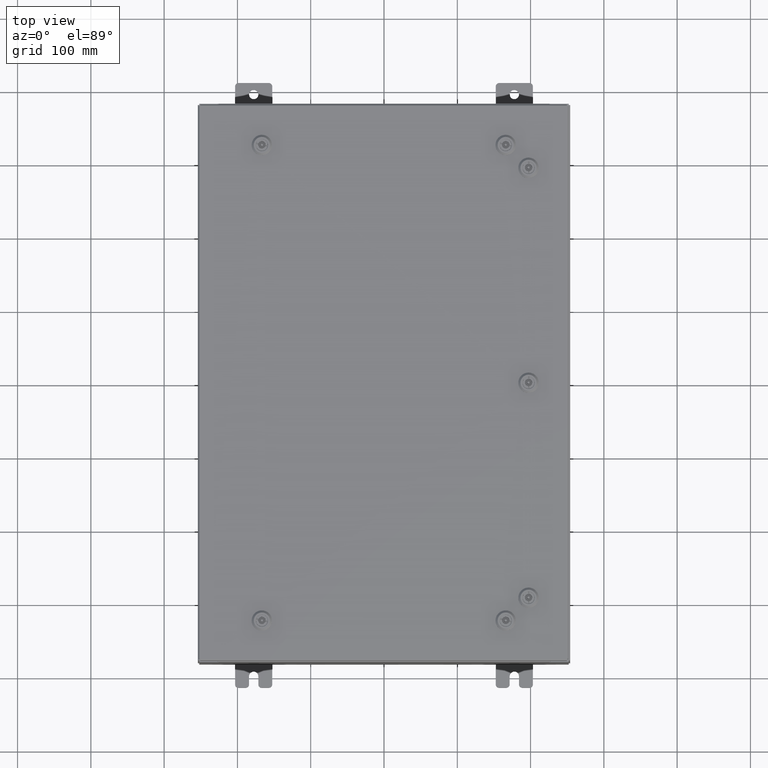
[diagram: clean part render]
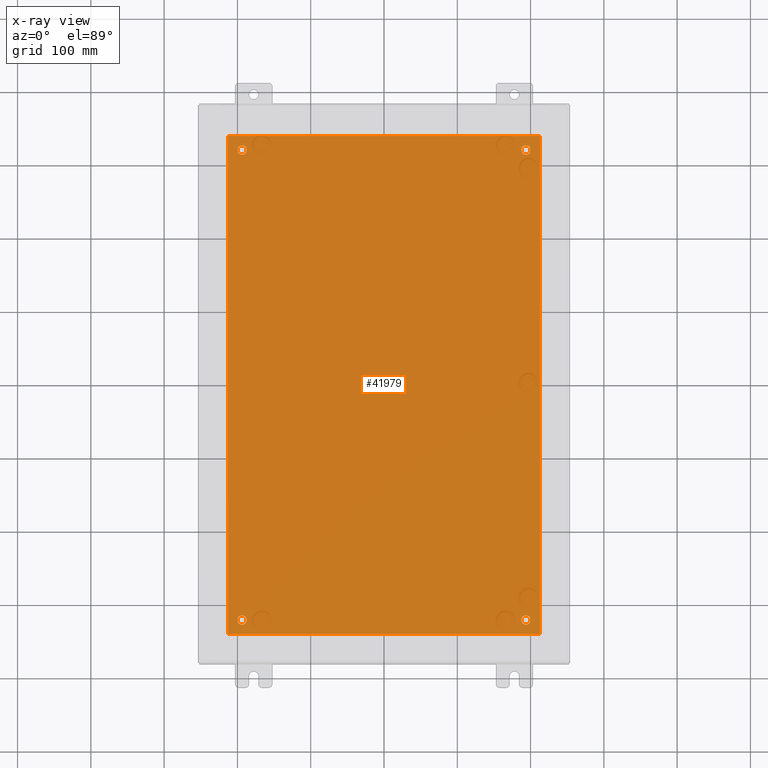
[diagram: x-ray — body ghosted, one internal face saturated and labeled with its STEP entity id]
A machine part, top view, then the same camera in x-ray: the body is ghosted and one INTERNAL B-rep face — a face not visible from any outside direction — is saturated and labeled: STEP entity #41979.
In plain terms, the highlighted planar face has unit normal (0, 0, -1).
Its self-contained STEP definition (entity closure, byte-faithful):
#761 = VECTOR ( 'NONE', #25860, 39.37007874015748100 ) ;
#937 = ORIENTED_EDGE ( 'NONE', *, *, #12222, .T. ) ;
#2925 = LINE ( 'NONE', #32680, #17628 ) ;
#4350 = CARTESIAN_POINT ( 'NONE',  ( -7.625000000000002700, -12.62500000000000200, -0.1039999999999999800 ) ) ;
#5690 = EDGE_CURVE ( 'NONE', #38371, #30769, #10854, .T. ) ;
#6161 = CARTESIAN_POINT ( 'NONE',  ( -8.383000000000000900, 13.38300000000000100, -0.1039999999999998300 ) ) ;
#6481 = DIRECTION ( 'NONE',  ( -0.0000000000000000000, -0.0000000000000000000, 1.000000000000000000 ) ) ;
#7189 = CARTESIAN_POINT ( 'NONE',  ( -7.375000000000003600, 12.62500000000000200, -0.1039999999999999800 ) ) ;
#7262 = VECTOR ( 'NONE', #22484, 39.37007874015748100 ) ;
#7349 = EDGE_LOOP ( 'NONE', ( #53517, #49476, #31293, #58685 ) ) ;
#8088 = VERTEX_POINT ( 'NONE', #51611 ) ;
#8525 = AXIS2_PLACEMENT_3D ( 'NONE', #43773, #14101, #48751 ) ;
#8856 = VERTEX_POINT ( 'NONE', #61329 ) ;
#9336 = DIRECTION ( 'NONE',  ( -1.000000000000000000, 0.0000000000000000000, 0.0000000000000000000 ) ) ;
#10854 = CIRCLE ( 'NONE', #46189, 0.2499999999999987000 ) ;
#11280 = AXIS2_PLACEMENT_3D ( 'NONE', #48562, #18892, #53551 ) ;
#12222 = EDGE_CURVE ( 'NONE', #56768, #8856, #21753, .T. ) ;
#12714 = CARTESIAN_POINT ( 'NONE',  ( -7.625000000000002700, 12.62500000000000200, -0.1039999999999999800 ) ) ;
#13199 = FACE_BOUND ( 'NONE', #40708, .T. ) ;
#13901 = AXIS2_PLACEMENT_3D ( 'NONE', #36153, #6481, #41131 ) ;
#14101 = DIRECTION ( 'NONE',  ( -0.0000000000000000000, -0.0000000000000000000, 1.000000000000000000 ) ) ;
#14767 = DIRECTION ( 'NONE',  ( -1.000000000000000000, -0.0000000000000000000, -0.0000000000000000000 ) ) ;
#14958 = AXIS2_PLACEMENT_3D ( 'NONE', #4350, #39041, #9336 ) ;
#15129 = VECTOR ( 'NONE', #14767, 39.37007874015748100 ) ;
#15661 = CARTESIAN_POINT ( 'NONE',  ( -8.383000000000000900, -13.38299999999999400, -0.1040000000000009100 ) ) ;
#17360 = CIRCLE ( 'NONE', #14958, 0.2499999999999998100 ) ;
#17628 = VECTOR ( 'NONE', #62385, 39.37007874015748100 ) ;
#17673 = DIRECTION ( 'NONE',  ( -1.000000000000000000, 0.0000000000000000000, 0.0000000000000000000 ) ) ;
#17687 = CIRCLE ( 'NONE', #13901, 0.2499999999999987000 ) ;
#18577 = CARTESIAN_POINT ( 'NONE',  ( 8.383000000000002700, 13.38300000000000100, -0.1039999999999992700 ) ) ;
#18892 = DIRECTION ( 'NONE',  ( -0.0000000000000000000, -0.0000000000000000000, 1.000000000000000000 ) ) ;
#19087 = AXIS2_PLACEMENT_3D ( 'NONE', #54759, #25097, #59777 ) ;
#19708 = VERTEX_POINT ( 'NONE', #7189 ) ;
#20385 = DIRECTION ( 'NONE',  ( -0.0000000000000000000, -0.0000000000000000000, 1.000000000000000000 ) ) ;
#20744 = VERTEX_POINT ( 'NONE', #18577 ) ;
#21753 = CIRCLE ( 'NONE', #8525, 0.2499999999999998100 ) ;
#22484 = DIRECTION ( 'NONE',  ( 1.000000000000000000, -0.0000000000000000000, -0.0000000000000000000 ) ) ;
#25097 = DIRECTION ( 'NONE',  ( -0.0000000000000000000, -0.0000000000000000000, 1.000000000000000000 ) ) ;
#25696 = EDGE_CURVE ( 'NONE', #8088, #48552, #17687, .T. ) ;
#25860 = DIRECTION ( 'NONE',  ( 0.0000000000000000000, -1.000000000000000000, 0.0000000000000000000 ) ) ;
#25900 = AXIS2_PLACEMENT_3D ( 'NONE', #12714, #47364, #17673 ) ;
#25968 = CARTESIAN_POINT ( 'NONE',  ( 0.0000000000000000000, 0.0000000000000000000, -0.1039999999999999800 ) ) ;
#27299 = EDGE_CURVE ( 'NONE', #52438, #19708, #30041, .T. ) ;
#28296 = EDGE_CURVE ( 'NONE', #63691, #20744, #2925, .T. ) ;
#28405 = DIRECTION ( 'NONE',  ( -0.0000000000000000000, -0.0000000000000000000, 1.000000000000000000 ) ) ;
#28819 = VERTEX_POINT ( 'NONE', #42804 ) ;
#29589 = CARTESIAN_POINT ( 'NONE',  ( 7.875000000000001800, 12.62500000000000200, -0.1039999999999999800 ) ) ;
#29623 = ORIENTED_EDGE ( 'NONE', *, *, #49201, .T. ) ;
#30041 = CIRCLE ( 'NONE', #25900, 0.2499999999999998100 ) ;
#30769 = VERTEX_POINT ( 'NONE', #53910 ) ;
#30959 = DIRECTION ( 'NONE',  ( -1.000000000000000000, 0.0000000000000000000, -0.0000000000000000000 ) ) ;
#31293 = ORIENTED_EDGE ( 'NONE', *, *, #31572, .F. ) ;
#31572 = EDGE_CURVE ( 'NONE', #20744, #28819, #41483, .T. ) ;
#32680 = CARTESIAN_POINT ( 'NONE',  ( 8.383000000000002700, -13.38299999999999200, -0.1039999999999992700 ) ) ;
#33607 = LINE ( 'NONE', #47182, #7262 ) ;
#34453 = CIRCLE ( 'NONE', #61493, 0.2499999999999987000 ) ;
#35844 = CARTESIAN_POINT ( 'NONE',  ( 7.875000000000001800, -12.62500000000000200, -0.1039999999999999800 ) ) ;
#36153 = CARTESIAN_POINT ( 'NONE',  ( 7.625000000000002700, 12.62500000000000200, -0.1039999999999999800 ) ) ;
#36357 = AXIS2_PLACEMENT_3D ( 'NONE', #25968, #60669, #30959 ) ;
#36495 = FACE_OUTER_BOUND ( 'NONE', #7349, .T. ) ;
#37361 = EDGE_CURVE ( 'NONE', #8856, #56768, #17360, .T. ) ;
#37635 = EDGE_CURVE ( 'NONE', #30769, #38371, #34453, .T. ) ;
#38021 = EDGE_CURVE ( 'NONE', #49500, #63691, #33607, .T. ) ;
#38371 = VERTEX_POINT ( 'NONE', #35844 ) ;
#39041 = DIRECTION ( 'NONE',  ( -0.0000000000000000000, -0.0000000000000000000, 1.000000000000000000 ) ) ;
#39604 = FACE_BOUND ( 'NONE', #60157, .T. ) ;
#40708 = EDGE_LOOP ( 'NONE', ( #51231, #61926 ) ) ;
#40721 = PLANE ( 'NONE',  #36357 ) ;
#41131 = DIRECTION ( 'NONE',  ( -1.000000000000000000, 0.0000000000000000000, 0.0000000000000000000 ) ) ;
#41483 = LINE ( 'NONE', #49416, #15129 ) ;
#41979 = ADVANCED_FACE ( 'NONE', ( #62844, #13199, #39604, #49645, #36495 ), #40721, .T. ) ;
#42283 = CARTESIAN_POINT ( 'NONE',  ( 8.383000000000002700, -13.38299999999999200, -0.1039999999999992700 ) ) ;
#42804 = CARTESIAN_POINT ( 'NONE',  ( -8.383000000000000900, 13.38300000000000100, -0.1039999999999998300 ) ) ;
#43281 = ORIENTED_EDGE ( 'NONE', *, *, #62411, .T. ) ;
#43773 = CARTESIAN_POINT ( 'NONE',  ( -7.625000000000002700, -12.62500000000000200, -0.1039999999999999800 ) ) ;
#44751 = EDGE_CURVE ( 'NONE', #28819, #49500, #53423, .T. ) ;
#46189 = AXIS2_PLACEMENT_3D ( 'NONE', #58088, #28405, #63108 ) ;
#46976 = CARTESIAN_POINT ( 'NONE',  ( -7.875000000000002700, 12.62500000000000200, -0.1039999999999999800 ) ) ;
#47182 = CARTESIAN_POINT ( 'NONE',  ( -8.500000000000000000, -13.38299999999999400, -0.1040000000000009100 ) ) ;
#47364 = DIRECTION ( 'NONE',  ( -0.0000000000000000000, -0.0000000000000000000, 1.000000000000000000 ) ) ;
#48552 = VERTEX_POINT ( 'NONE', #29589 ) ;
#48562 = CARTESIAN_POINT ( 'NONE',  ( -7.625000000000002700, 12.62500000000000200, -0.1039999999999999800 ) ) ;
#48751 = DIRECTION ( 'NONE',  ( -1.000000000000000000, 0.0000000000000000000, 0.0000000000000000000 ) ) ;
#49201 = EDGE_CURVE ( 'NONE', #19708, #52438, #55523, .T. ) ;
#49416 = CARTESIAN_POINT ( 'NONE',  ( 8.500000000000001800, 13.38300000000000300, -0.1040000000000009100 ) ) ;
#49476 = ORIENTED_EDGE ( 'NONE', *, *, #44751, .F. ) ;
#49500 = VERTEX_POINT ( 'NONE', #15661 ) ;
#49645 = FACE_BOUND ( 'NONE', #62691, .T. ) ;
#50056 = CARTESIAN_POINT ( 'NONE',  ( 7.625000000000002700, -12.62500000000000200, -0.1039999999999999800 ) ) ;
#50267 = ORIENTED_EDGE ( 'NONE', *, *, #27299, .T. ) ;
#51231 = ORIENTED_EDGE ( 'NONE', *, *, #5690, .T. ) ;
#51611 = CARTESIAN_POINT ( 'NONE',  ( 7.375000000000004400, 12.62500000000000200, -0.1039999999999999800 ) ) ;
#52438 = VERTEX_POINT ( 'NONE', #46976 ) ;
#53423 = LINE ( 'NONE', #6161, #761 ) ;
#53517 = ORIENTED_EDGE ( 'NONE', *, *, #38021, .F. ) ;
#53551 = DIRECTION ( 'NONE',  ( -1.000000000000000000, 0.0000000000000000000, 0.0000000000000000000 ) ) ;
#53910 = CARTESIAN_POINT ( 'NONE',  ( 7.375000000000004400, -12.62500000000000200, -0.1039999999999999800 ) ) ;
#54759 = CARTESIAN_POINT ( 'NONE',  ( 7.625000000000002700, 12.62500000000000200, -0.1039999999999999800 ) ) ;
#55035 = DIRECTION ( 'NONE',  ( -1.000000000000000000, 0.0000000000000000000, 0.0000000000000000000 ) ) ;
#55498 = ORIENTED_EDGE ( 'NONE', *, *, #25696, .T. ) ;
#55523 = CIRCLE ( 'NONE', #11280, 0.2499999999999998100 ) ;
#56768 = VERTEX_POINT ( 'NONE', #62484 ) ;
#56917 = CIRCLE ( 'NONE', #19087, 0.2499999999999987000 ) ;
#58088 = CARTESIAN_POINT ( 'NONE',  ( 7.625000000000002700, -12.62500000000000200, -0.1039999999999999800 ) ) ;
#58685 = ORIENTED_EDGE ( 'NONE', *, *, #28296, .F. ) ;
#59777 = DIRECTION ( 'NONE',  ( -1.000000000000000000, 0.0000000000000000000, 0.0000000000000000000 ) ) ;
#60157 = EDGE_LOOP ( 'NONE', ( #43281, #55498 ) ) ;
#60669 = DIRECTION ( 'NONE',  ( 0.0000000000000000000, 0.0000000000000000000, -1.000000000000000000 ) ) ;
#61329 = CARTESIAN_POINT ( 'NONE',  ( -7.875000000000002700, -12.62500000000000200, -0.1039999999999999800 ) ) ;
#61493 = AXIS2_PLACEMENT_3D ( 'NONE', #50056, #20385, #55035 ) ;
#61926 = ORIENTED_EDGE ( 'NONE', *, *, #37635, .T. ) ;
#62385 = DIRECTION ( 'NONE',  ( 0.0000000000000000000, 1.000000000000000000, 0.0000000000000000000 ) ) ;
#62411 = EDGE_CURVE ( 'NONE', #48552, #8088, #56917, .T. ) ;
#62484 = CARTESIAN_POINT ( 'NONE',  ( -7.375000000000003600, -12.62500000000000200, -0.1039999999999999800 ) ) ;
#62691 = EDGE_LOOP ( 'NONE', ( #29623, #50267 ) ) ;
#62844 = FACE_BOUND ( 'NONE', #63434, .T. ) ;
#63108 = DIRECTION ( 'NONE',  ( -1.000000000000000000, 0.0000000000000000000, 0.0000000000000000000 ) ) ;
#63201 = ORIENTED_EDGE ( 'NONE', *, *, #37361, .T. ) ;
#63434 = EDGE_LOOP ( 'NONE', ( #937, #63201 ) ) ;
#63691 = VERTEX_POINT ( 'NONE', #42283 ) ;